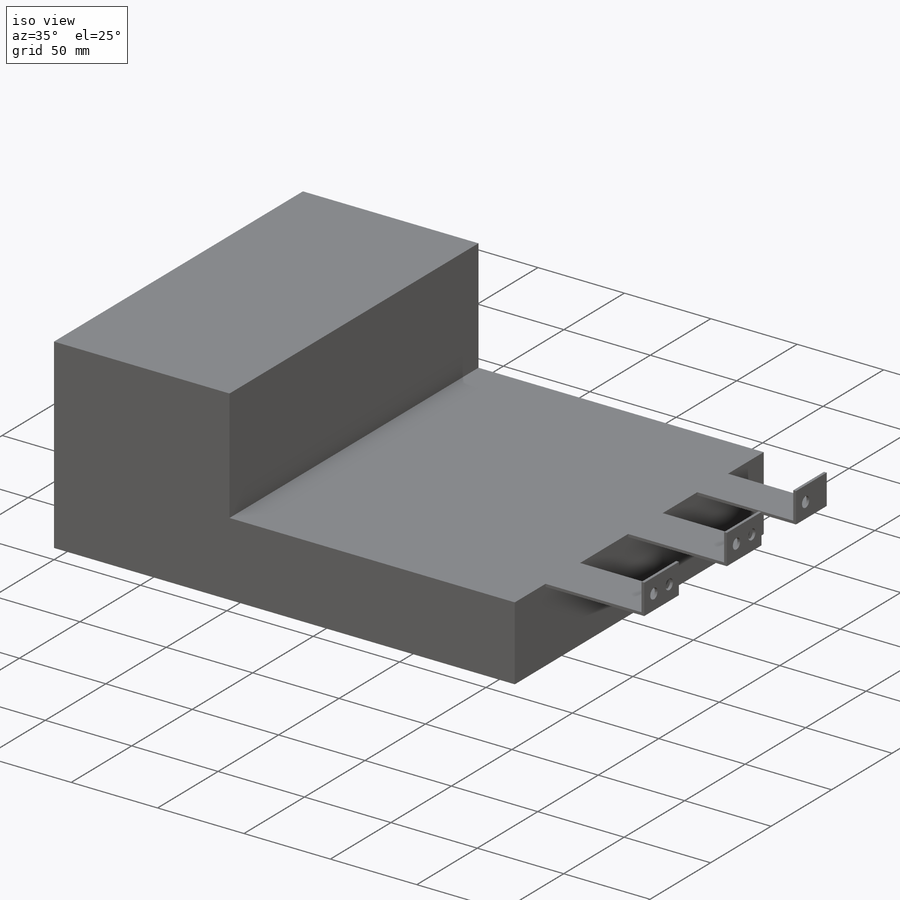
[diagram: iso view]
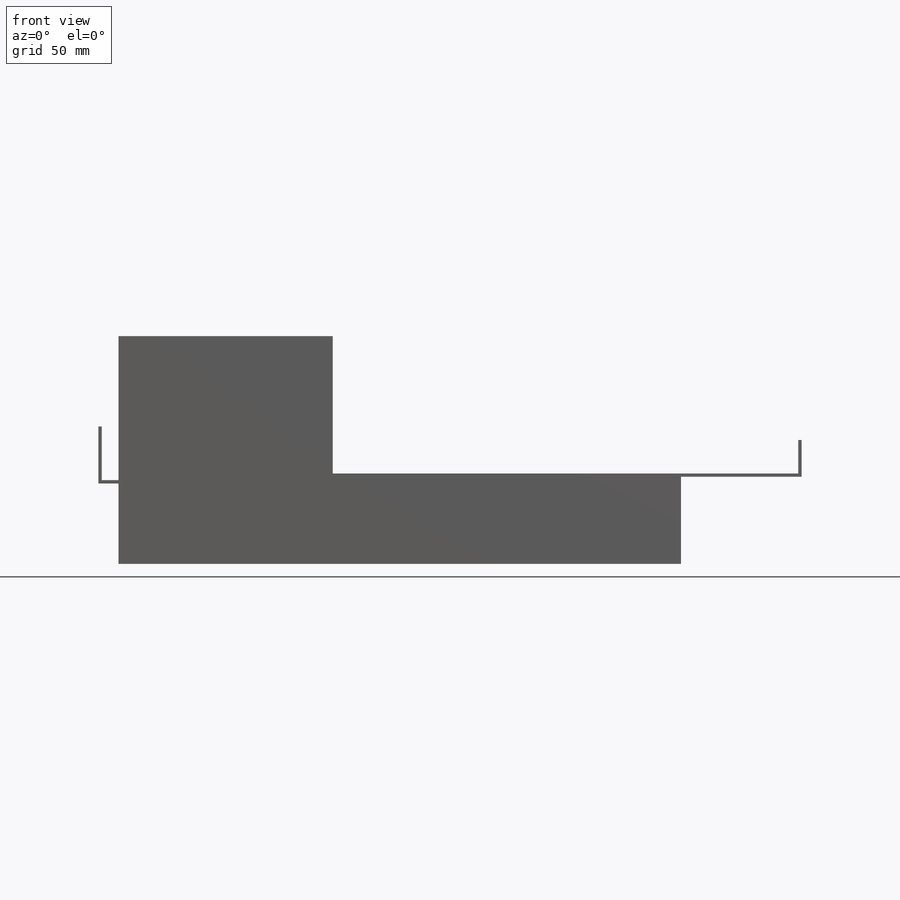
[diagram: front view]
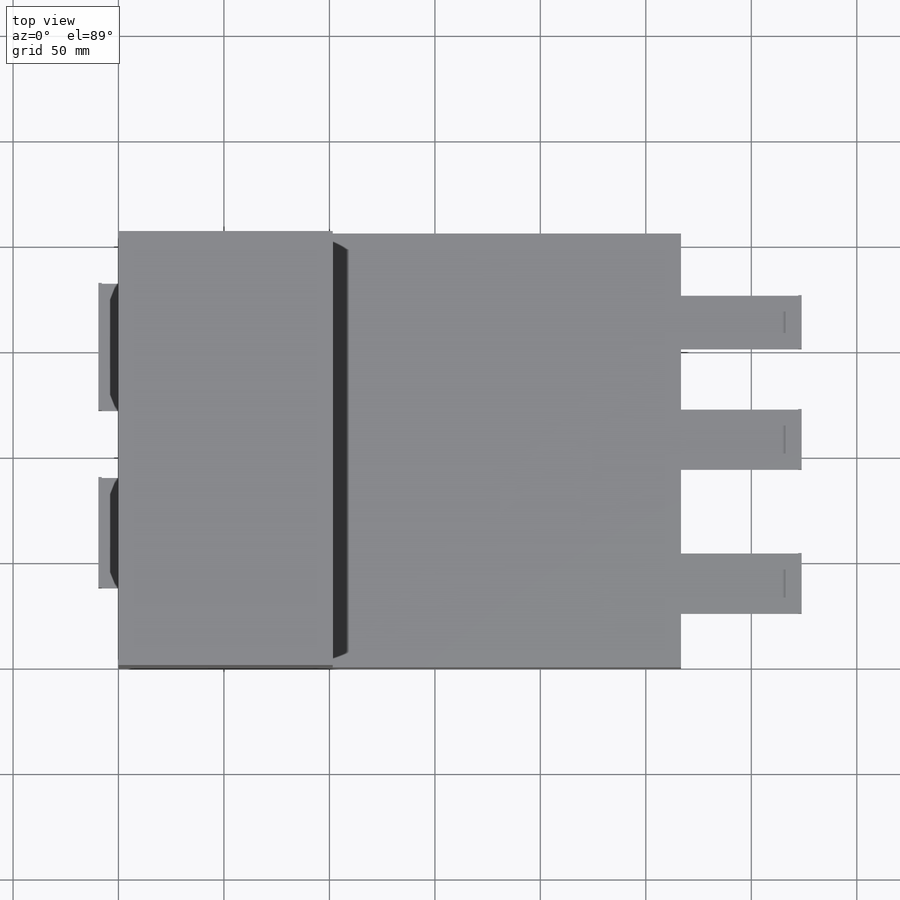
[diagram: top view]
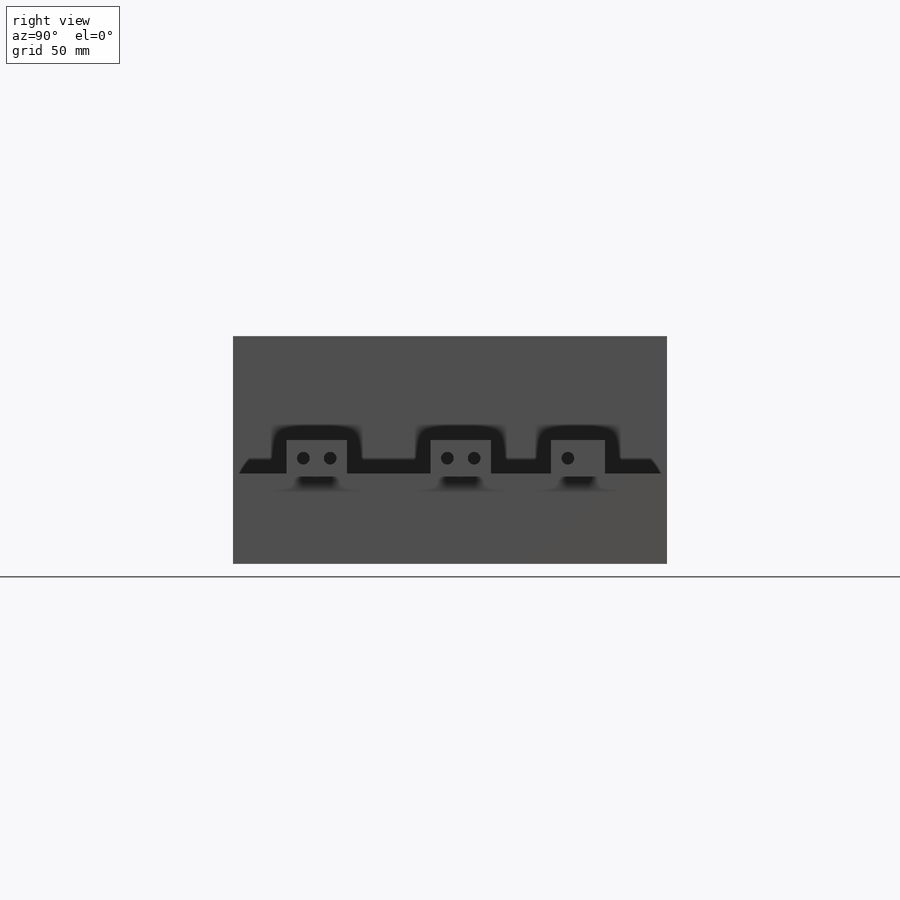
[diagram: right view]
SOLIDWORKS PART (.sldprt)
format: sldprt  version: not decoded by parser v0  size: 293,888 bytes
history: native  units: mm
features: sketch x8, extrude x6, cut_extrude x2, material x1 (+13 scaffold rows collapsed)
feature tree (30):
  scaffold x13  (default folders/planes/origin — collapsed)
  material  "Material <not specified>"
  sketch  "Sketch1"  dims[D1=266.7mm D2=205.74mm D3=101.6mm]
  extrude  "Battery Side"  Depth=107.95mm
  sketch  "Sketch6"  dims[D1=1.5875mm D2=39.6875mm D3=23.8125mm D4=60.325mm D5=31.75mm D6=52.3875mm]
  extrude  "Battery Tab Bases"  Depth=9.525mm
  sketch  "Sketch7"  dims[D1=1.5875mm]
  extrude  "Battery Tabs"  Depth=25.4mm
  sketch  "Sketch8"  dims[D1=6.0mm D2=6.0mm D3=50.0063mm]
  cut_extrude  "Battery Tab Holes"  [1 undecoded]
  sketch  "Sketch2"
  extrude  "Motor Side"  Depth=42.8625mm
  sketch  "Sketch3"  dims[D1=1.5875mm D2=25.4mm D3=28.575mm D4=39.6875mm D5=28.575mm D6=28.575mm D7=25.4mm]
  extrude  "Motor Tab Bases"  Depth=57.15mm
  sketch  "Sketch4"  dims[D1=1.5875mm]
  extrude  "Motor Tabs"  Depth=15.875mm
  sketch  "Sketch5"  dims[D1=6.0mm D2=6.0mm D3=6.0mm D4=6.0mm D5=6.0mm D6=12.7mm D7=12.7mm D8=68.2625mm D9=57.15mm]
  cut_extrude  "Motor Tab Holes"  [1 undecoded]
decode coverage: 13 of 16 modeling features carry decoded parameters
note: 2 parameter values undecoded
note: suppression state not decoded; provenance and decode notes live in map.json
